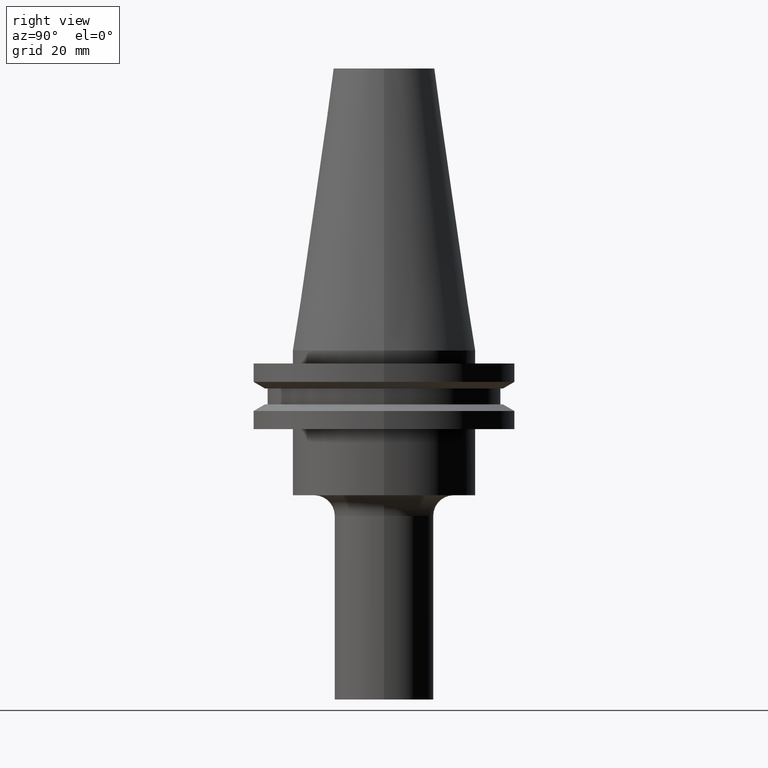
[diagram: clean part render]
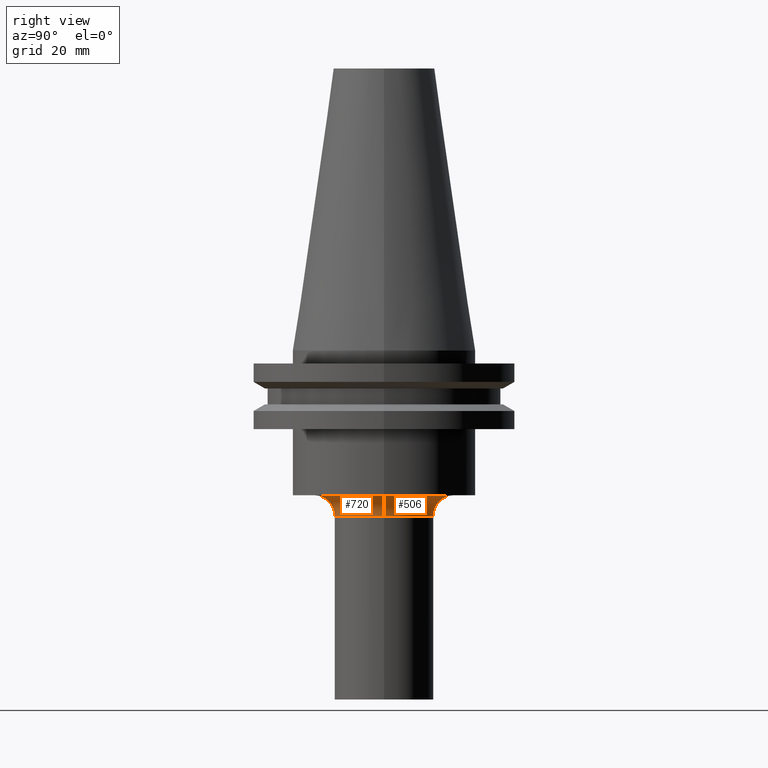
[diagram: same view with one multi-face feature highlighted, each face labeled with its STEP entity id]
A machine part, right view. The highlighted faces form ONE feature: a constant-radius fillet chain: 2 tangent blend faces with common blend radius 5 mm. The faces share edges in the B-rep.
Their STEP definitions:
[1] entity #720 (Torus):
#35 = DIRECTION ( 'NONE',  ( 1.000000000000000000, 0.000000000000000000, 0.000000000000000000 ) ) ;
#43 = DIRECTION ( 'NONE',  ( 1.000000000000000000, 0.000000000000000000, 0.000000000000000000 ) ) ;
#61 = EDGE_CURVE ( 'NONE', #522, #300, #635, .T. ) ;
#66 = AXIS2_PLACEMENT_3D ( 'NONE', #502, #690, #521 ) ;
#75 = DIRECTION ( 'NONE',  ( -0.000000000000000000, -0.000000000000000000, 1.000000000000000000 ) ) ;
#79 = ORIENTED_EDGE ( 'NONE', *, *, #235, .T. ) ;
#81 = CARTESIAN_POINT ( 'NONE',  ( -17.00000000000000000, 2.081899558550500280E-15, -40.04999999999999716 ) ) ;
#115 = CARTESIAN_POINT ( 'NONE',  ( 12.00000000000000000, 0.000000000000000000, -40.04999999999999716 ) ) ;
#123 = CARTESIAN_POINT ( 'NONE',  ( 17.00000000000000000, 0.000000000000000000, -35.04999999999999716 ) ) ;
#127 = AXIS2_PLACEMENT_3D ( 'NONE', #81, #514, #741 ) ;
#161 = CIRCLE ( 'NONE', #700, 4.999999999999997335 ) ;
#167 = VERTEX_POINT ( 'NONE', #380 ) ;
#194 = EDGE_CURVE ( 'NONE', #522, #167, #508, .T. ) ;
#197 = CARTESIAN_POINT ( 'NONE',  ( 0.000000000000000000, 0.000000000000000000, -40.04999999999999716 ) ) ;
#220 = FACE_OUTER_BOUND ( 'NONE', #557, .T. ) ;
#223 = DIRECTION ( 'NONE',  ( 0.000000000000000000, -1.000000000000000000, 0.000000000000000000 ) ) ;
#235 = EDGE_CURVE ( 'NONE', #167, #722, #600, .T. ) ;
#298 = ORIENTED_EDGE ( 'NONE', *, *, #194, .T. ) ;
#300 = VERTEX_POINT ( 'NONE', #123 ) ;
#354 = CARTESIAN_POINT ( 'NONE',  ( 0.000000000000000000, 0.000000000000000000, -40.04999999999999716 ) ) ;
#380 = CARTESIAN_POINT ( 'NONE',  ( -12.00000000000000000, 1.469576158976823947E-15, -40.04999999999999716 ) ) ;
#394 = CARTESIAN_POINT ( 'NONE',  ( -17.00000000000000000, 2.081899558550500280E-15, -35.04999999999999716 ) ) ;
#417 = TOROIDAL_SURFACE ( 'NONE', #748, 17.00000000000000000, 4.999999999999999112 ) ;
#491 = AXIS2_PLACEMENT_3D ( 'NONE', #197, #75, #35 ) ;
#502 = CARTESIAN_POINT ( 'NONE',  ( 0.000000000000000000, 0.000000000000000000, -35.04999999999999716 ) ) ;
#508 = CIRCLE ( 'NONE', #127, 4.999999999999997335 ) ;
#514 = DIRECTION ( 'NONE',  ( 1.224646799147353207E-16, 1.000000000000000000, 0.000000000000000000 ) ) ;
#521 = DIRECTION ( 'NONE',  ( 1.000000000000000000, 0.000000000000000000, 0.000000000000000000 ) ) ;
#522 = VERTEX_POINT ( 'NONE', #394 ) ;
#556 = ORIENTED_EDGE ( 'NONE', *, *, #61, .F. ) ;
#557 = EDGE_LOOP ( 'NONE', ( #556, #298, #79, #593 ) ) ;
#578 = DIRECTION ( 'NONE',  ( -0.000000000000000000, -0.000000000000000000, 1.000000000000000000 ) ) ;
#593 = ORIENTED_EDGE ( 'NONE', *, *, #602, .F. ) ;
#600 = CIRCLE ( 'NONE', #491, 12.00000000000000000 ) ;
#602 = EDGE_CURVE ( 'NONE', #300, #722, #161, .T. ) ;
#635 = CIRCLE ( 'NONE', #66, 17.00000000000000000 ) ;
#644 = DIRECTION ( 'NONE',  ( 0.000000000000000000, 0.000000000000000000, -1.000000000000000000 ) ) ;
#690 = DIRECTION ( 'NONE',  ( -0.000000000000000000, -0.000000000000000000, 1.000000000000000000 ) ) ;
#700 = AXIS2_PLACEMENT_3D ( 'NONE', #707, #223, #644 ) ;
#707 = CARTESIAN_POINT ( 'NONE',  ( 17.00000000000000000, 0.000000000000000000, -40.04999999999999716 ) ) ;
#720 = ADVANCED_FACE ( 'NONE', ( #220 ), #417, .F. ) ;
#722 = VERTEX_POINT ( 'NONE', #115 ) ;
#741 = DIRECTION ( 'NONE',  ( -1.000000000000000000, 1.224646799147353454E-16, 0.000000000000000000 ) ) ;
#748 = AXIS2_PLACEMENT_3D ( 'NONE', #354, #578, #43 ) ;
[2] entity #506 (Torus):
#32 = DIRECTION ( 'NONE',  ( -0.000000000000000000, -0.000000000000000000, 1.000000000000000000 ) ) ;
#81 = CARTESIAN_POINT ( 'NONE',  ( -17.00000000000000000, 2.081899558550500280E-15, -40.04999999999999716 ) ) ;
#115 = CARTESIAN_POINT ( 'NONE',  ( 12.00000000000000000, 0.000000000000000000, -40.04999999999999716 ) ) ;
#123 = CARTESIAN_POINT ( 'NONE',  ( 17.00000000000000000, 0.000000000000000000, -35.04999999999999716 ) ) ;
#127 = AXIS2_PLACEMENT_3D ( 'NONE', #81, #514, #741 ) ;
#144 = AXIS2_PLACEMENT_3D ( 'NONE', #570, #32, #762 ) ;
#161 = CIRCLE ( 'NONE', #700, 4.999999999999997335 ) ;
#167 = VERTEX_POINT ( 'NONE', #380 ) ;
#170 = DIRECTION ( 'NONE',  ( 1.000000000000000000, 0.000000000000000000, 0.000000000000000000 ) ) ;
#194 = EDGE_CURVE ( 'NONE', #522, #167, #508, .T. ) ;
#223 = DIRECTION ( 'NONE',  ( 0.000000000000000000, -1.000000000000000000, 0.000000000000000000 ) ) ;
#248 = ORIENTED_EDGE ( 'NONE', *, *, #194, .F. ) ;
#300 = VERTEX_POINT ( 'NONE', #123 ) ;
#323 = FACE_OUTER_BOUND ( 'NONE', #709, .T. ) ;
#335 = AXIS2_PLACEMENT_3D ( 'NONE', #473, #460, #170 ) ;
#380 = CARTESIAN_POINT ( 'NONE',  ( -12.00000000000000000, 1.469576158976823947E-15, -40.04999999999999716 ) ) ;
#394 = CARTESIAN_POINT ( 'NONE',  ( -17.00000000000000000, 2.081899558550500280E-15, -35.04999999999999716 ) ) ;
#433 = AXIS2_PLACEMENT_3D ( 'NONE', #620, #692, #740 ) ;
#460 = DIRECTION ( 'NONE',  ( -0.000000000000000000, -0.000000000000000000, 1.000000000000000000 ) ) ;
#470 = EDGE_CURVE ( 'NONE', #722, #167, #601, .T. ) ;
#473 = CARTESIAN_POINT ( 'NONE',  ( 0.000000000000000000, 0.000000000000000000, -35.04999999999999716 ) ) ;
#488 = ORIENTED_EDGE ( 'NONE', *, *, #672, .F. ) ;
#506 = ADVANCED_FACE ( 'NONE', ( #323 ), #712, .F. ) ;
#508 = CIRCLE ( 'NONE', #127, 4.999999999999997335 ) ;
#514 = DIRECTION ( 'NONE',  ( 1.224646799147353207E-16, 1.000000000000000000, 0.000000000000000000 ) ) ;
#522 = VERTEX_POINT ( 'NONE', #394 ) ;
#570 = CARTESIAN_POINT ( 'NONE',  ( 0.000000000000000000, 0.000000000000000000, -40.04999999999999716 ) ) ;
#601 = CIRCLE ( 'NONE', #433, 12.00000000000000000 ) ;
#602 = EDGE_CURVE ( 'NONE', #300, #722, #161, .T. ) ;
#620 = CARTESIAN_POINT ( 'NONE',  ( 0.000000000000000000, 0.000000000000000000, -40.04999999999999716 ) ) ;
#644 = DIRECTION ( 'NONE',  ( 0.000000000000000000, 0.000000000000000000, -1.000000000000000000 ) ) ;
#665 = CIRCLE ( 'NONE', #335, 17.00000000000000000 ) ;
#672 = EDGE_CURVE ( 'NONE', #300, #522, #665, .T. ) ;
#692 = DIRECTION ( 'NONE',  ( -0.000000000000000000, -0.000000000000000000, 1.000000000000000000 ) ) ;
#700 = AXIS2_PLACEMENT_3D ( 'NONE', #707, #223, #644 ) ;
#706 = ORIENTED_EDGE ( 'NONE', *, *, #470, .T. ) ;
#707 = CARTESIAN_POINT ( 'NONE',  ( 17.00000000000000000, 0.000000000000000000, -40.04999999999999716 ) ) ;
#709 = EDGE_LOOP ( 'NONE', ( #248, #488, #773, #706 ) ) ;
#712 = TOROIDAL_SURFACE ( 'NONE', #144, 17.00000000000000000, 4.999999999999999112 ) ;
#722 = VERTEX_POINT ( 'NONE', #115 ) ;
#740 = DIRECTION ( 'NONE',  ( 1.000000000000000000, 0.000000000000000000, 0.000000000000000000 ) ) ;
#741 = DIRECTION ( 'NONE',  ( -1.000000000000000000, 1.224646799147353454E-16, 0.000000000000000000 ) ) ;
#762 = DIRECTION ( 'NONE',  ( 1.000000000000000000, 0.000000000000000000, 0.000000000000000000 ) ) ;
#773 = ORIENTED_EDGE ( 'NONE', *, *, #602, .T. ) ;